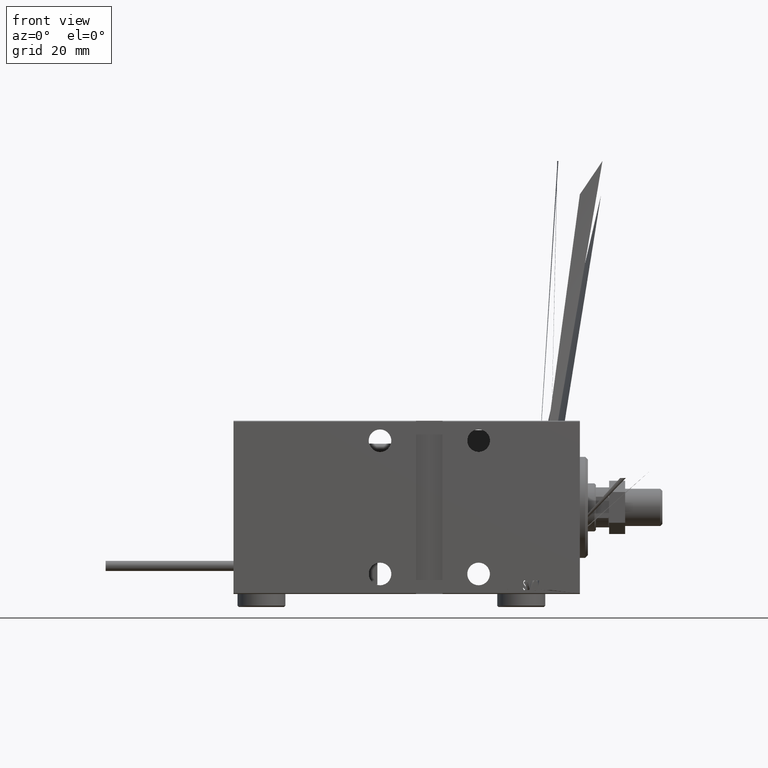
[diagram: clean part render]
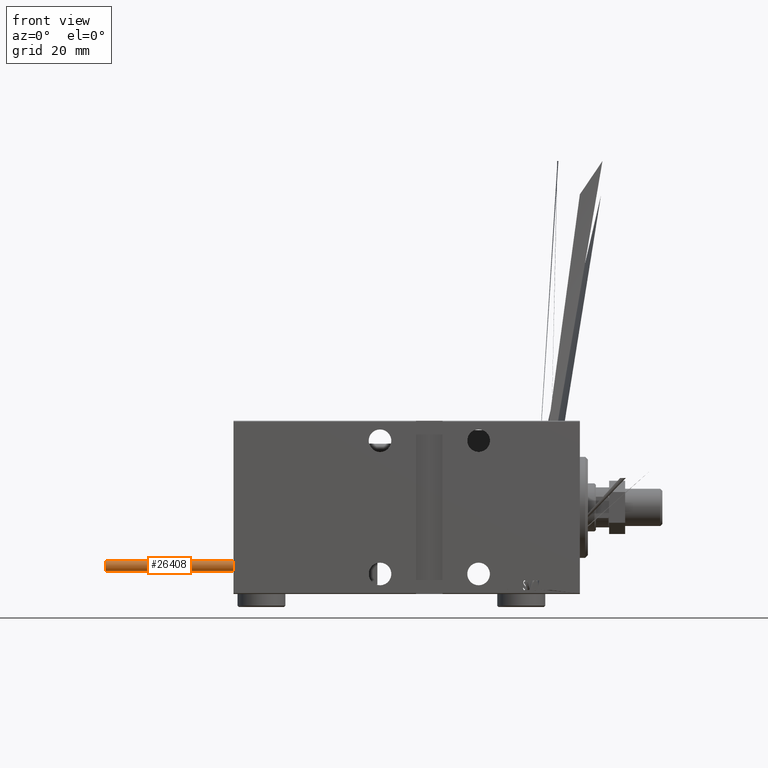
[diagram: same view with one face highlighted and labeled with its STEP entity id]
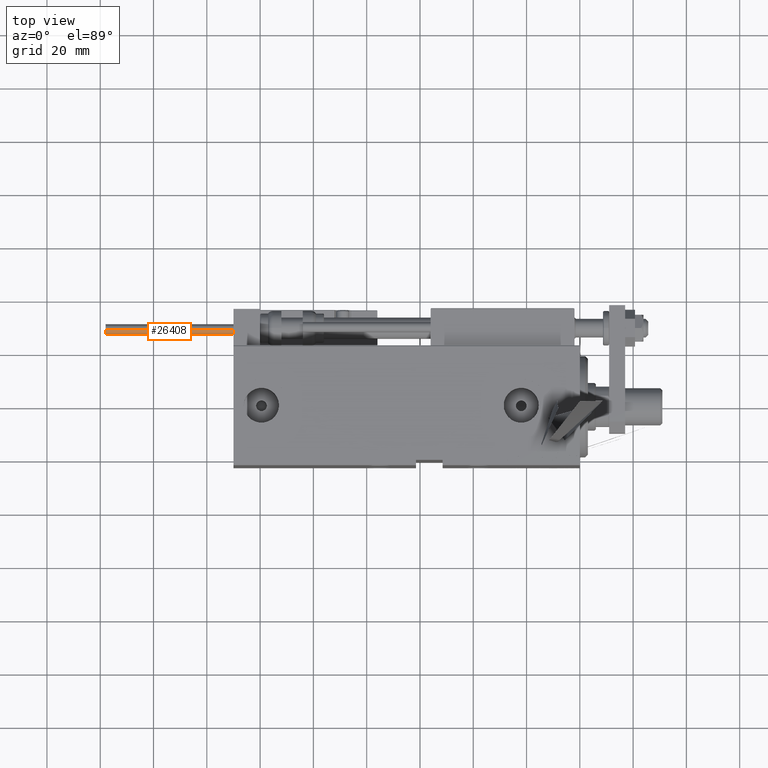
[diagram: same view with one face highlighted and labeled with its STEP entity id]
A machine part, front view. The second image highlights one B-rep face of the part: STEP entity #26408.
A second angle (top view) of the same face is appended — the face is thin or edge-on in the first view.
In plain terms, the highlighted cylindrical surface (edge-blend (fillet) strip) has radius 1.9 mm, axis along (1, -0, 0).
Its self-contained STEP definition (entity closure, byte-faithful):
#3169 = DIRECTION ( 'NONE',  ( -1.000000000000000000, 0.000000000000000000, 0.000000000000000000 ) ) ;
#5806 = EDGE_CURVE ( 'NONE', #28336, #24246, #22540, .T. ) ;
#6560 = ORIENTED_EDGE ( 'NONE', *, *, #29821, .F. ) ;
#6794 = CARTESIAN_POINT ( 'NONE',  ( 1.899999999999999467, 2.326828918379970872E-16, 48.00000000000000000 ) ) ;
#6831 = DIRECTION ( 'NONE',  ( 0.000000000000000000, 0.000000000000000000, 1.000000000000000000 ) ) ;
#7961 = DIRECTION ( 'NONE',  ( 1.000000000000000000, 0.000000000000000000, 0.000000000000000000 ) ) ;
#10579 = CARTESIAN_POINT ( 'NONE',  ( 0.000000000000000000, 0.000000000000000000, 48.00000000000000000 ) ) ;
#12364 = AXIS2_PLACEMENT_3D ( 'NONE', #39040, #19298, #3169 ) ;
#12622 = EDGE_CURVE ( 'NONE', #24246, #45129, #32969, .T. ) ;
#13104 = CARTESIAN_POINT ( 'NONE',  ( -1.899999999999999467, 0.000000000000000000, 0.000000000000000000 ) ) ;
#14382 = CARTESIAN_POINT ( 'NONE',  ( 0.000000000000000000, 0.000000000000000000, 0.000000000000000000 ) ) ;
#15644 = VERTEX_POINT ( 'NONE', #6794 ) ;
#17758 = EDGE_LOOP ( 'NONE', ( #6560, #40773, #44855, #44523 ) ) ;
#18811 = DIRECTION ( 'NONE',  ( 1.000000000000000000, 0.000000000000000000, 0.000000000000000000 ) ) ;
#19298 = DIRECTION ( 'NONE',  ( -0.000000000000000000, -0.000000000000000000, -1.000000000000000000 ) ) ;
#21397 = LINE ( 'NONE', #25303, #23298 ) ;
#22540 = LINE ( 'NONE', #50302, #25393 ) ;
#23298 = VECTOR ( 'NONE', #33069, 1000.000000000000000 ) ;
#24246 = VERTEX_POINT ( 'NONE', #13104 ) ;
#25303 = CARTESIAN_POINT ( 'NONE',  ( 1.899999999999999467, 2.326828918379970872E-16, 48.00000000000000000 ) ) ;
#25393 = VECTOR ( 'NONE', #51074, 1000.000000000000000 ) ;
#26408 = ADVANCED_FACE ( 'NONE', ( #31232 ), #50191, .T. ) ;
#27171 = AXIS2_PLACEMENT_3D ( 'NONE', #14382, #6831, #18811 ) ;
#28336 = VERTEX_POINT ( 'NONE', #29301 ) ;
#29301 = CARTESIAN_POINT ( 'NONE',  ( -1.899999999999999467, 0.000000000000000000, 48.00000000000000000 ) ) ;
#29821 = EDGE_CURVE ( 'NONE', #15644, #45129, #21397, .T. ) ;
#31232 = FACE_OUTER_BOUND ( 'NONE', #17758, .T. ) ;
#32969 = CIRCLE ( 'NONE', #27171, 1.899999999999999467 ) ;
#33069 = DIRECTION ( 'NONE',  ( -0.000000000000000000, -0.000000000000000000, -1.000000000000000000 ) ) ;
#33226 = AXIS2_PLACEMENT_3D ( 'NONE', #10579, #34485, #7961 ) ;
#34485 = DIRECTION ( 'NONE',  ( 0.000000000000000000, 0.000000000000000000, 1.000000000000000000 ) ) ;
#39040 = CARTESIAN_POINT ( 'NONE',  ( 0.000000000000000000, 0.000000000000000000, 48.00000000000000000 ) ) ;
#40380 = CARTESIAN_POINT ( 'NONE',  ( 1.899999999999999467, 2.326828918379970872E-16, 0.000000000000000000 ) ) ;
#40773 = ORIENTED_EDGE ( 'NONE', *, *, #47670, .F. ) ;
#44523 = ORIENTED_EDGE ( 'NONE', *, *, #12622, .T. ) ;
#44855 = ORIENTED_EDGE ( 'NONE', *, *, #5806, .T. ) ;
#45129 = VERTEX_POINT ( 'NONE', #40380 ) ;
#45687 = CIRCLE ( 'NONE', #33226, 1.899999999999999467 ) ;
#47670 = EDGE_CURVE ( 'NONE', #28336, #15644, #45687, .T. ) ;
#50191 = CYLINDRICAL_SURFACE ( 'NONE', #12364, 1.899999999999999467 ) ;
#50302 = CARTESIAN_POINT ( 'NONE',  ( -1.899999999999999467, 0.000000000000000000, 48.00000000000000000 ) ) ;
#51074 = DIRECTION ( 'NONE',  ( -0.000000000000000000, -0.000000000000000000, -1.000000000000000000 ) ) ;